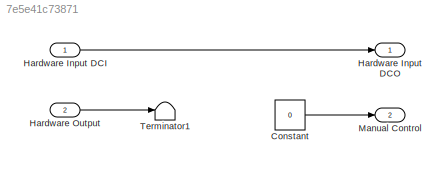
MODEL slx_7e5e41c73871
KIND model
BLOCK [Constant] Constant
  OutDataTypeStr = boolean
  Value = 0
BLOCK [Inport] Hardware Input DCI
  BusOutputAsStruct = on
  IconDisplay = Port number
  OutDataTypeStr = Bus: HARDWARE_IO_INPUT_BUS
BLOCK [Outport] Hardware Input DCO
  BusOutputAsStruct = on
  IconDisplay = Port number
  OutDataTypeStr = Bus: HARDWARE_IO_INPUT_BUS
BLOCK [Inport] Hardware Output
  IconDisplay = Port number
  OutDataTypeStr = Bus: HARDWARE_IO_OUTPUT_BUS
  Port = 2
BLOCK [Outport] Manual Control
  IconDisplay = Port number
  Port = 2
BLOCK [Terminator] Terminator1
LINE Constant:1 -> Manual Control:1
LINE Hardware Input DCI:1 -> Hardware Input DCO:1
LINE Hardware Output:1 -> Terminator1:1
